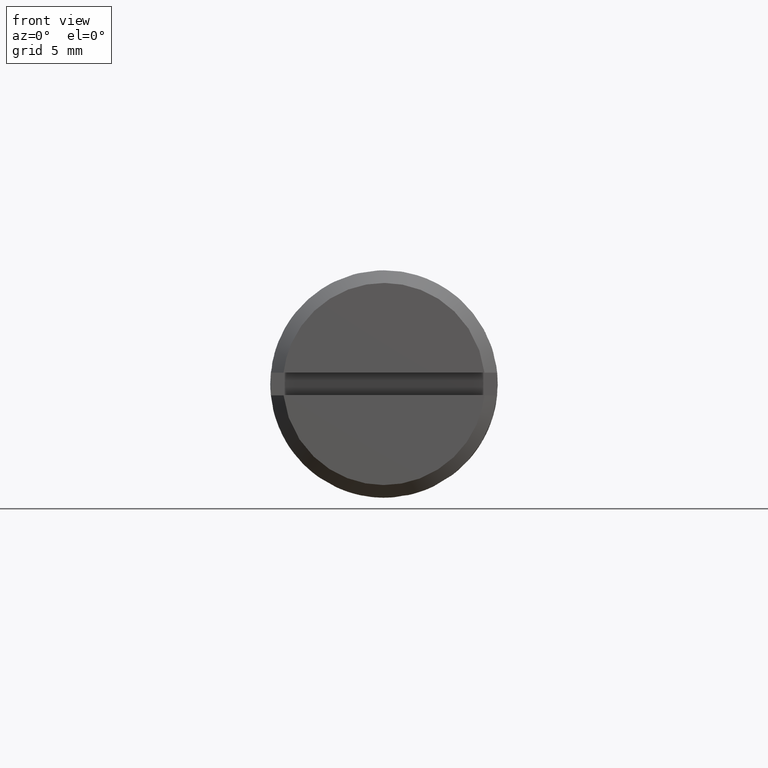
[diagram: clean part render]
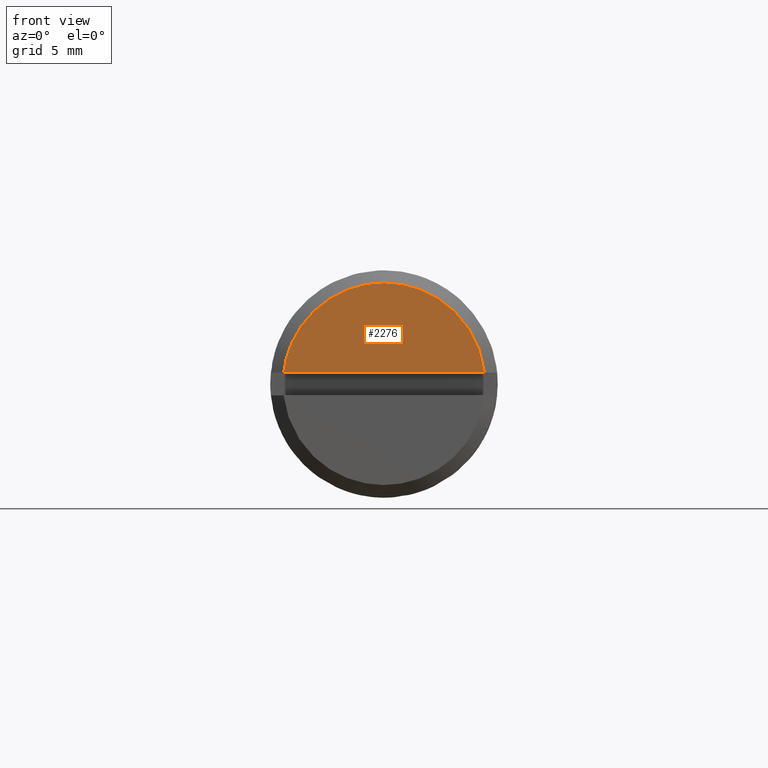
[diagram: same view with one face highlighted and labeled with its STEP entity id]
A machine part, front view. The second image highlights one B-rep face of the part: STEP entity #2276.
In plain terms, the highlighted face is a freeform B-spline surface patch.
Its self-contained STEP definition (entity closure, byte-faithful):
#2071=CARTESIAN_POINT('',(-11.999900000000000,-7.949213797602840,0.900000000000000));
#2072=VERTEX_POINT('',#2071);
#2080=CARTESIAN_POINT('',(-11.999900000000000,7.949213797602840,0.900000000000000));
#2081=VERTEX_POINT('',#2080);
#2082=CARTESIAN_POINT('',(-11.999900000000000,7.949213797602840,0.900000000000000));
#2083=CARTESIAN_POINT('',(-11.999900000000000,-7.949213797602840,0.900000000000000));
#2084=QUASI_UNIFORM_CURVE('',1,(#2082,#2083),.UNSPECIFIED.,.F.,.U.);
#2085=EDGE_CURVE('',#2081,#2072,#2084,.T.);
#2238=CARTESIAN_POINT('',(-11.999900000000000,-7.949213797602880,0.900000000000001));
#2239=CARTESIAN_POINT('',(-11.999900000000000,-7.145360716946407,8.0));
#2240=CARTESIAN_POINT('',(-11.999900000000000,0.0,8.0));
#2241=CARTESIAN_POINT('',(-11.999900000000000,7.145360716946407,8.0));
#2242=CARTESIAN_POINT('',(-11.999900000000000,7.949213797602880,0.900000000000003));
#2250=(BOUNDED_CURVE()B_SPLINE_CURVE(2,(#2238,#2239,#2240,#2241,#2242),.UNSPECIFIED.,.F.,.U.)B_SPLINE_CURVE_WITH_KNOTS((3,2,3),(0.0,0.500000000000000,1.0),.UNSPECIFIED.)CURVE()GEOMETRIC_REPRESENTATION_ITEM()RATIONAL_B_SPLINE_CURVE((1.0,0.745821694508815,1.0,0.745821694508815,1.0))REPRESENTATION_ITEM(''));
#2251=EDGE_CURVE('',#2072,#2081,#2250,.T.);
#2267=CARTESIAN_POINT('',(-11.999900000000000,-8.743340523655251,0.545354947111459));
#2268=CARTESIAN_POINT('',(-11.999900000000000,8.743340665798272,0.545354947111459));
#2269=CARTESIAN_POINT('',(-11.999900000000000,-8.743340523655251,8.354645179846393));
#2270=CARTESIAN_POINT('',(-11.999900000000000,8.743340665798272,8.354645179846393));
#2271=B_SPLINE_SURFACE_WITH_KNOTS('',1,1,((#2267,#2269),(#2268,#2270)),.UNSPECIFIED.,.F.,.F.,.U.,(2,2),(2,2),(0.0,17.486681189453520),(0.0,7.809290232734934),.UNSPECIFIED.);
#2272=ORIENTED_EDGE('',*,*,#2085,.T.);
#2273=ORIENTED_EDGE('',*,*,#2251,.T.);
#2274=EDGE_LOOP('',(#2272,#2273));
#2275=FACE_OUTER_BOUND('',#2274,.T.);
#2276=ADVANCED_FACE('',(#2275),#2271,.F.);